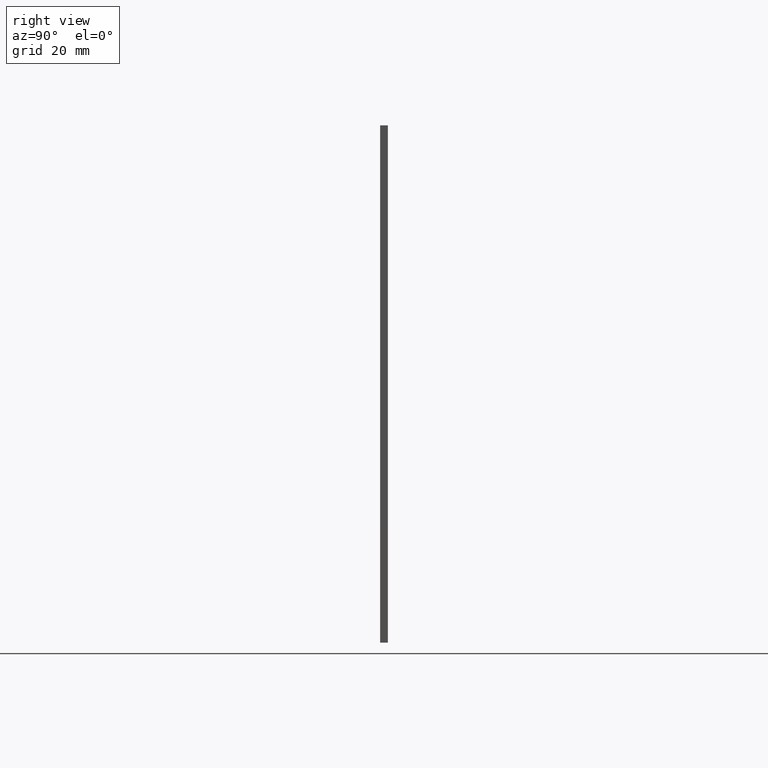
[diagram: clean part render]
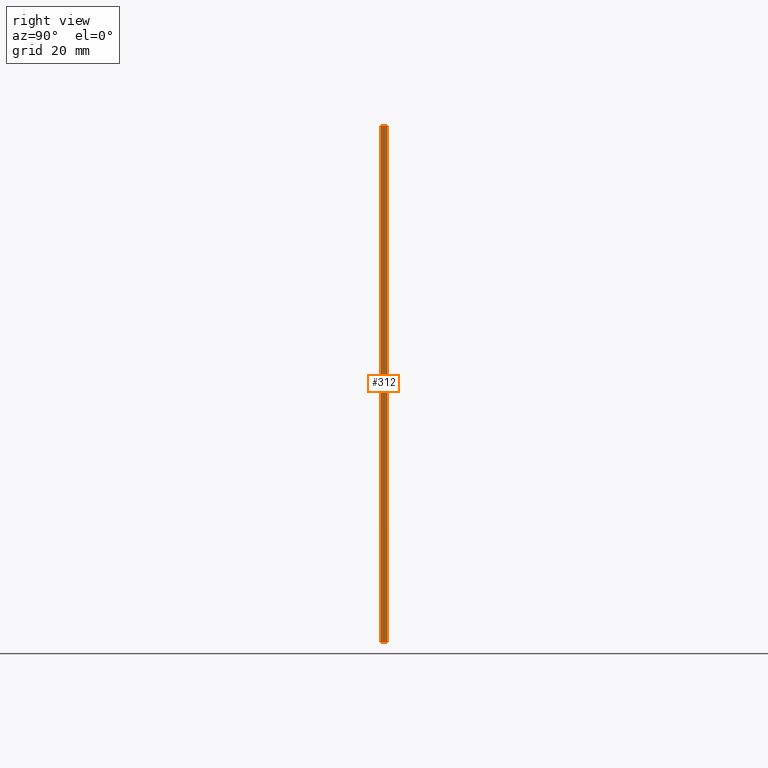
[diagram: same view with one face highlighted and labeled with its STEP entity id]
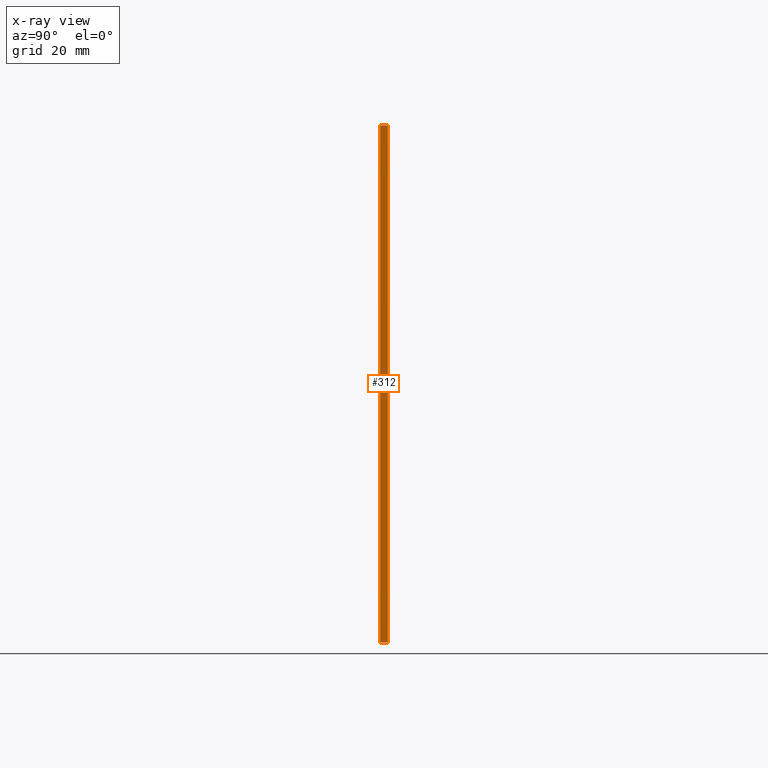
[diagram: x-ray of the same camera — body ghosted, the highlighted face saturated]
A machine part, right view. The second image highlights one B-rep face of the part: STEP entity #312.
The next image is the same camera in x-ray: the body ghosted, the highlighted face saturated — about 0% of this face is hidden behind the body in this view.
In plain terms, the highlighted planar face has unit normal (1, 0, 0).
Its self-contained STEP definition (entity closure, byte-faithful):
#33 = VECTOR ( 'NONE', #426, 39.37007874015748143 ) ;
#44 = CARTESIAN_POINT ( 'NONE',  ( 2.437500000000000000, 0.07200000000000000844, -2.437500000000000444 ) ) ;
#59 = CARTESIAN_POINT ( 'NONE',  ( 2.437500000000000000, 0.0000000000000000000, 2.437500000000000000 ) ) ;
#66 = VERTEX_POINT ( 'NONE', #69 ) ;
#67 = EDGE_LOOP ( 'NONE', ( #83, #182, #201, #492 ) ) ;
#69 = CARTESIAN_POINT ( 'NONE',  ( 2.437500000000000000, 0.07200000000000000844, 2.437500000000000000 ) ) ;
#73 = LINE ( 'NONE', #327, #258 ) ;
#83 = ORIENTED_EDGE ( 'NONE', *, *, #199, .T. ) ;
#85 = CARTESIAN_POINT ( 'NONE',  ( 2.437500000000000000, 0.0000000000000000000, -2.437500000000000000 ) ) ;
#90 = LINE ( 'NONE', #85, #371 ) ;
#132 = PLANE ( 'NONE',  #405 ) ;
#151 = VERTEX_POINT ( 'NONE', #44 ) ;
#178 = VECTOR ( 'NONE', #301, 39.37007874015748143 ) ;
#182 = ORIENTED_EDGE ( 'NONE', *, *, #414, .F. ) ;
#183 = DIRECTION ( 'NONE',  ( 0.0000000000000000000, 0.0000000000000000000, -1.000000000000000000 ) ) ;
#190 = EDGE_CURVE ( 'NONE', #409, #352, #90, .T. ) ;
#199 = EDGE_CURVE ( 'NONE', #151, #66, #73, .T. ) ;
#201 = ORIENTED_EDGE ( 'NONE', *, *, #190, .F. ) ;
#229 = CARTESIAN_POINT ( 'NONE',  ( 2.437500000000000000, 0.0000000000000000000, -2.437500000000000444 ) ) ;
#258 = VECTOR ( 'NONE', #331, 39.37007874015748143 ) ;
#273 = LINE ( 'NONE', #367, #33 ) ;
#281 = LINE ( 'NONE', #333, #178 ) ;
#297 = DIRECTION ( 'NONE',  ( 1.000000000000000000, 0.0000000000000000000, 0.0000000000000000000 ) ) ;
#301 = DIRECTION ( 'NONE',  ( 0.0000000000000000000, 1.000000000000000000, -0.0000000000000000000 ) ) ;
#312 = ADVANCED_FACE ( 'NONE', ( #325 ), #132, .T. ) ;
#325 = FACE_OUTER_BOUND ( 'NONE', #67, .T. ) ;
#327 = CARTESIAN_POINT ( 'NONE',  ( 2.437500000000000000, 0.07200000000000000844, -2.437500000000000000 ) ) ;
#331 = DIRECTION ( 'NONE',  ( -0.0000000000000000000, -0.0000000000000000000, 1.000000000000000000 ) ) ;
#333 = CARTESIAN_POINT ( 'NONE',  ( 2.437500000000000000, 0.07200000000000000844, 2.437500000000000000 ) ) ;
#334 = CARTESIAN_POINT ( 'NONE',  ( 2.437500000000000000, 0.07200000000000000844, -2.437500000000000000 ) ) ;
#341 = EDGE_CURVE ( 'NONE', #409, #151, #273, .T. ) ;
#352 = VERTEX_POINT ( 'NONE', #59 ) ;
#367 = CARTESIAN_POINT ( 'NONE',  ( 2.437500000000000000, 0.07200000000000000844, -2.437500000000000000 ) ) ;
#371 = VECTOR ( 'NONE', #410, 39.37007874015748143 ) ;
#405 = AXIS2_PLACEMENT_3D ( 'NONE', #334, #297, #183 ) ;
#409 = VERTEX_POINT ( 'NONE', #229 ) ;
#410 = DIRECTION ( 'NONE',  ( -0.0000000000000000000, 0.0000000000000000000, 1.000000000000000000 ) ) ;
#414 = EDGE_CURVE ( 'NONE', #352, #66, #281, .T. ) ;
#426 = DIRECTION ( 'NONE',  ( -0.0000000000000000000, 1.000000000000000000, 0.0000000000000000000 ) ) ;
#492 = ORIENTED_EDGE ( 'NONE', *, *, #341, .T. ) ;